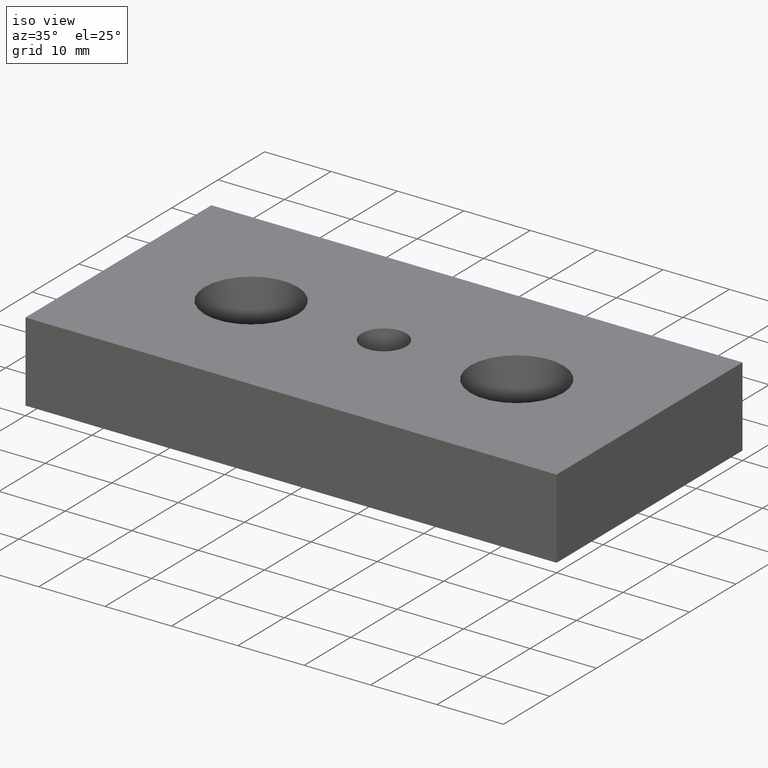
[diagram: clean part render]
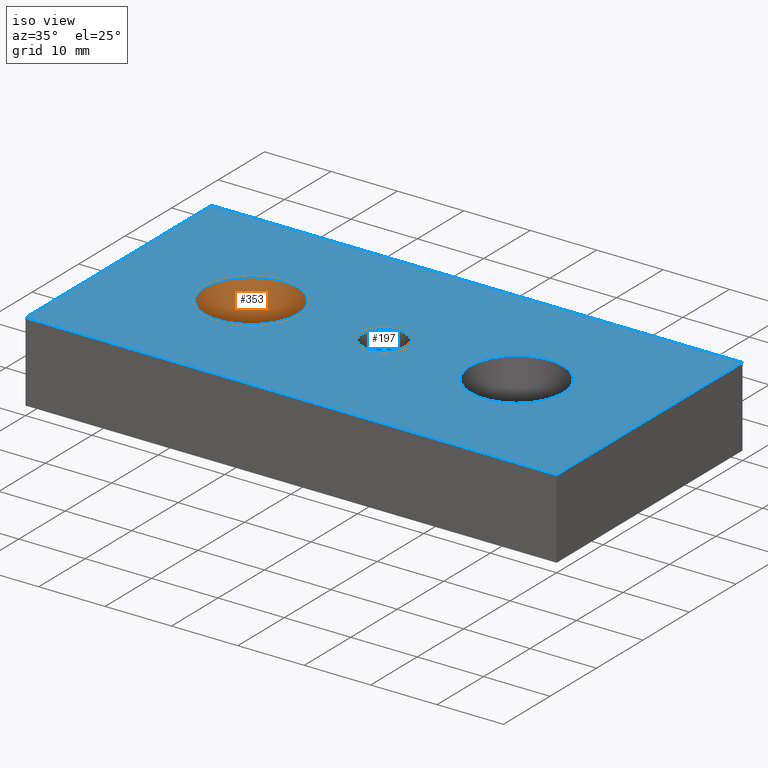
[diagram: same view with the hole feature highlighted: cylindrical wall and planar end face, labeled with their STEP entity ids]
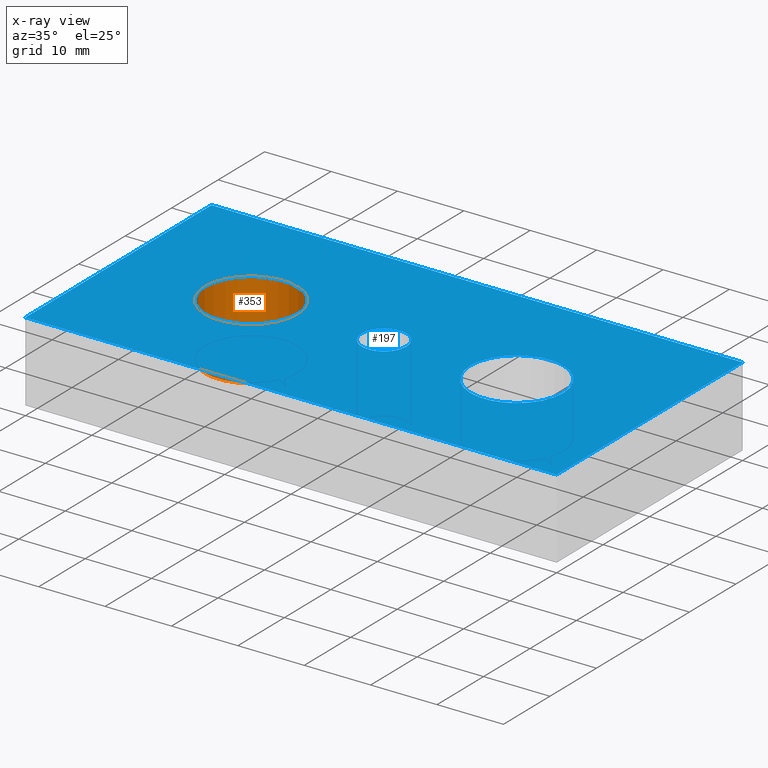
[diagram: x-ray of the same camera — body ghosted, the hole faces saturated]
A machine part, iso view. The highlighted faces form one hole feature of diameter 14 mm: the cylindrical wall (entity #353, orange) and its adjacent planar end face (entity #197, blue) — they share a circular edge in the B-rep.
The next image is the same camera in x-ray (body ghosted, the hole faces saturated) — the bore reads through the body.
Wall:
#137=CARTESIAN_POINT('',(-27.009994006000085,0.000004439999998,12.0));
#138=VERTEX_POINT('',#137);
#139=CARTESIAN_POINT('',(-13.009997114000072,0.000004439999998,11.999999999999998));
#140=VERTEX_POINT('',#139);
#141=CARTESIAN_POINT('',(-20.009995560000078,0.000004439999998,12.0));
#142=DIRECTION('',(0.0,6.123234E-017,1.0));
#143=DIRECTION('',(1.0,0.0,0.0));
#144=AXIS2_PLACEMENT_3D('',#141,#142,#143);
#145=CIRCLE('',#144,6.999998446000006);
#146=EDGE_CURVE('',#138,#140,#145,.T.);
#148=CARTESIAN_POINT('',(-20.009995560000078,0.000004439999998,12.0));
#149=DIRECTION('',(0.0,6.123234E-017,1.0));
#150=DIRECTION('',(1.0,0.0,0.0));
#151=AXIS2_PLACEMENT_3D('',#148,#149,#150);
#152=CIRCLE('',#151,6.999998446000006);
#153=EDGE_CURVE('',#140,#138,#152,.T.);
#310=CARTESIAN_POINT('',(-13.009997114000072,0.000004439999998,4.0));
#311=VERTEX_POINT('',#310);
#312=CARTESIAN_POINT('',(-27.009994006000085,0.000004439999998,4.0));
#313=VERTEX_POINT('',#312);
#314=CARTESIAN_POINT('',(-20.009995560000078,0.000004439999998,4.0));
#315=DIRECTION('',(0.0,6.123234E-017,1.0));
#316=DIRECTION('',(1.0,0.0,0.0));
#317=AXIS2_PLACEMENT_3D('',#314,#315,#316);
#318=CIRCLE('',#317,6.999998446000006);
#319=EDGE_CURVE('',#311,#313,#318,.T.);
#321=CARTESIAN_POINT('',(-20.009995560000078,0.000004439999998,4.0));
#322=DIRECTION('',(0.0,6.123234E-017,1.0));
#323=DIRECTION('',(1.0,0.0,0.0));
#324=AXIS2_PLACEMENT_3D('',#321,#322,#323);
#325=CIRCLE('',#324,6.999998446000006);
#326=EDGE_CURVE('',#313,#311,#325,.T.);
#335=CARTESIAN_POINT('',(-20.009995560000078,0.000004439999998,4.0));
#336=DIRECTION('',(0.0,6.123234E-017,1.0));
#337=DIRECTION('',(1.0,0.0,0.0));
#338=AXIS2_PLACEMENT_3D('',#335,#336,#337);
#339=CYLINDRICAL_SURFACE('',#338,6.999998446000006);
#340=CARTESIAN_POINT('',(-13.009997114000072,0.000004439999998,4.0));
#341=DIRECTION('',(0.0,0.0,1.0));
#342=VECTOR('',#341,7.999999999999998);
#343=LINE('',#340,#342);
#344=EDGE_CURVE('',#311,#140,#343,.T.);
#345=ORIENTED_EDGE('',*,*,#344,.T.);
#346=ORIENTED_EDGE('',*,*,#153,.T.);
#347=ORIENTED_EDGE('',*,*,#146,.T.);
#348=ORIENTED_EDGE('',*,*,#344,.F.);
#349=ORIENTED_EDGE('',*,*,#326,.F.);
#350=ORIENTED_EDGE('',*,*,#319,.F.);
#351=EDGE_LOOP('',(#345,#346,#347,#348,#349,#350));
#352=FACE_OUTER_BOUND('',#351,.T.);
#353=ADVANCED_FACE('',(#352),#339,.F.);
End face:
#7=CARTESIAN_POINT('',(39.999991119999947,20.000000000000114,12.0));
#8=VERTEX_POINT('',#7);
#25=CARTESIAN_POINT('',(-39.999991120000061,20.000000000000114,12.0));
#26=VERTEX_POINT('',#25);
#33=CARTESIAN_POINT('',(39.999991119999947,20.000000000000114,12.0));
#34=DIRECTION('',(-1.0,0.0,0.0));
#35=VECTOR('',#34,79.999982240000008);
#36=LINE('',#33,#35);
#37=EDGE_CURVE('',#8,#26,#36,.T.);
#56=CARTESIAN_POINT('',(-39.999991120000061,-19.999991120000004,12.0));
#57=VERTEX_POINT('',#56);
#64=CARTESIAN_POINT('',(-39.999991120000061,20.000000000000114,12.0));
#65=DIRECTION('',(0.0,-1.0,0.0));
#66=VECTOR('',#65,39.999991120000118);
#67=LINE('',#64,#66);
#68=EDGE_CURVE('',#26,#57,#67,.T.);
#87=CARTESIAN_POINT('',(39.999991119999947,-19.999991120000004,12.0));
#88=VERTEX_POINT('',#87);
#95=CARTESIAN_POINT('',(-39.999991120000061,-19.999991120000004,12.0));
#96=DIRECTION('',(1.0,0.0,0.0));
#97=VECTOR('',#96,79.999982240000008);
#98=LINE('',#95,#97);
#99=EDGE_CURVE('',#57,#88,#98,.T.);
#117=CARTESIAN_POINT('',(39.999991119999947,-19.999991120000004,12.0));
#118=DIRECTION('',(0.0,1.0,0.0));
#119=VECTOR('',#118,39.999991120000118);
#120=LINE('',#117,#119);
#121=EDGE_CURVE('',#88,#8,#120,.T.);
#126=CARTESIAN_POINT('',(-48.000109346378082,-24.000110234280328,12.0));
#127=DIRECTION('',(0.0,0.0,1.0));
#128=DIRECTION('',(1.0,0.0,0.0));
#129=AXIS2_PLACEMENT_3D('',#126,#127,#128);
#130=PLANE('',#129);
#131=ORIENTED_EDGE('',*,*,#37,.T.);
#132=ORIENTED_EDGE('',*,*,#68,.T.);
#133=ORIENTED_EDGE('',*,*,#99,.T.);
#134=ORIENTED_EDGE('',*,*,#121,.T.);
#135=EDGE_LOOP('',(#131,#132,#133,#134));
#136=FACE_OUTER_BOUND('',#135,.T.);
#137=CARTESIAN_POINT('',(-27.009994006000085,0.000004439999998,12.0));
#138=VERTEX_POINT('',#137);
#139=CARTESIAN_POINT('',(-13.009997114000072,0.000004439999998,11.999999999999998));
#140=VERTEX_POINT('',#139);
#141=CARTESIAN_POINT('',(-20.009995560000078,0.000004439999998,12.0));
#142=DIRECTION('',(0.0,6.123234E-017,1.0));
#143=DIRECTION('',(1.0,0.0,0.0));
#144=AXIS2_PLACEMENT_3D('',#141,#142,#143);
#145=CIRCLE('',#144,6.999998446000006);
#146=EDGE_CURVE('',#138,#140,#145,.T.);
#147=ORIENTED_EDGE('',*,*,#146,.F.);
#148=CARTESIAN_POINT('',(-20.009995560000078,0.000004439999998,12.0));
#149=DIRECTION('',(0.0,6.123234E-017,1.0));
#150=DIRECTION('',(1.0,0.0,0.0));
#151=AXIS2_PLACEMENT_3D('',#148,#149,#150);
#152=CIRCLE('',#151,6.999998446000006);
#153=EDGE_CURVE('',#140,#138,#152,.T.);
#154=ORIENTED_EDGE('',*,*,#153,.F.);
#155=EDGE_LOOP('',(#147,#154));
#156=FACE_BOUND('',#155,.T.);
#157=CARTESIAN_POINT('',(12.999997113999939,0.000004439999998,12.0));
#158=VERTEX_POINT('',#157);
#159=CARTESIAN_POINT('',(26.999994005999952,0.000004439999998,11.999999999999998));
#160=VERTEX_POINT('',#159);
#161=CARTESIAN_POINT('',(19.999995559999945,0.000004439999998,12.0));
#162=DIRECTION('',(0.0,6.123234E-017,1.0));
#163=DIRECTION('',(1.0,0.0,0.0));
#164=AXIS2_PLACEMENT_3D('',#161,#162,#163);
#165=CIRCLE('',#164,6.999998446000006);
#166=EDGE_CURVE('',#158,#160,#165,.T.);
#167=ORIENTED_EDGE('',*,*,#166,.F.);
#168=CARTESIAN_POINT('',(19.999995559999945,0.000004439999998,12.0));
#169=DIRECTION('',(0.0,6.123234E-017,1.0));
#170=DIRECTION('',(1.0,0.0,0.0));
#171=AXIS2_PLACEMENT_3D('',#168,#169,#170);
#172=CIRCLE('',#171,6.999998446000006);
#173=EDGE_CURVE('',#160,#158,#172,.T.);
#174=ORIENTED_EDGE('',*,*,#173,.F.);
#175=EDGE_LOOP('',(#167,#174));
#176=FACE_BOUND('',#175,.T.);
#177=CARTESIAN_POINT('',(-3.375000000000000,0.0,12.0));
#178=VERTEX_POINT('',#177);
#179=CARTESIAN_POINT('',(3.375000000000000,0.0,12.0));
#180=VERTEX_POINT('',#179);
#181=CARTESIAN_POINT('',(0.0,0.0,12.0));
#182=DIRECTION('',(0.0,0.0,1.0));
#183=DIRECTION('',(1.0,0.0,0.0));
#184=AXIS2_PLACEMENT_3D('',#181,#182,#183);
#185=CIRCLE('',#184,3.375000000000000);
#186=EDGE_CURVE('',#178,#180,#185,.T.);
#187=ORIENTED_EDGE('',*,*,#186,.F.);
#188=CARTESIAN_POINT('',(0.0,0.0,12.0));
#189=DIRECTION('',(0.0,0.0,1.0));
#190=DIRECTION('',(1.0,0.0,0.0));
#191=AXIS2_PLACEMENT_3D('',#188,#189,#190);
#192=CIRCLE('',#191,3.375000000000000);
#193=EDGE_CURVE('',#180,#178,#192,.T.);
#194=ORIENTED_EDGE('',*,*,#193,.F.);
#195=EDGE_LOOP('',(#187,#194));
#196=FACE_BOUND('',#195,.T.);
#197=ADVANCED_FACE('',(#136,#156,#176,#196),#130,.T.);